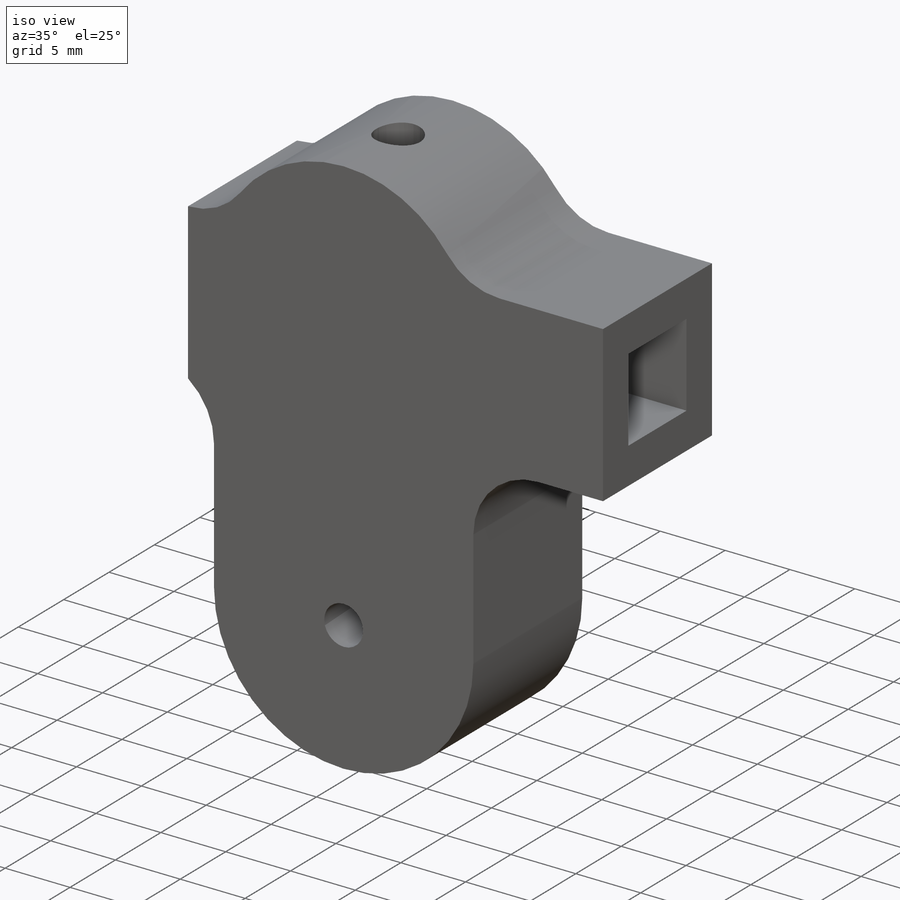
[diagram: iso view]
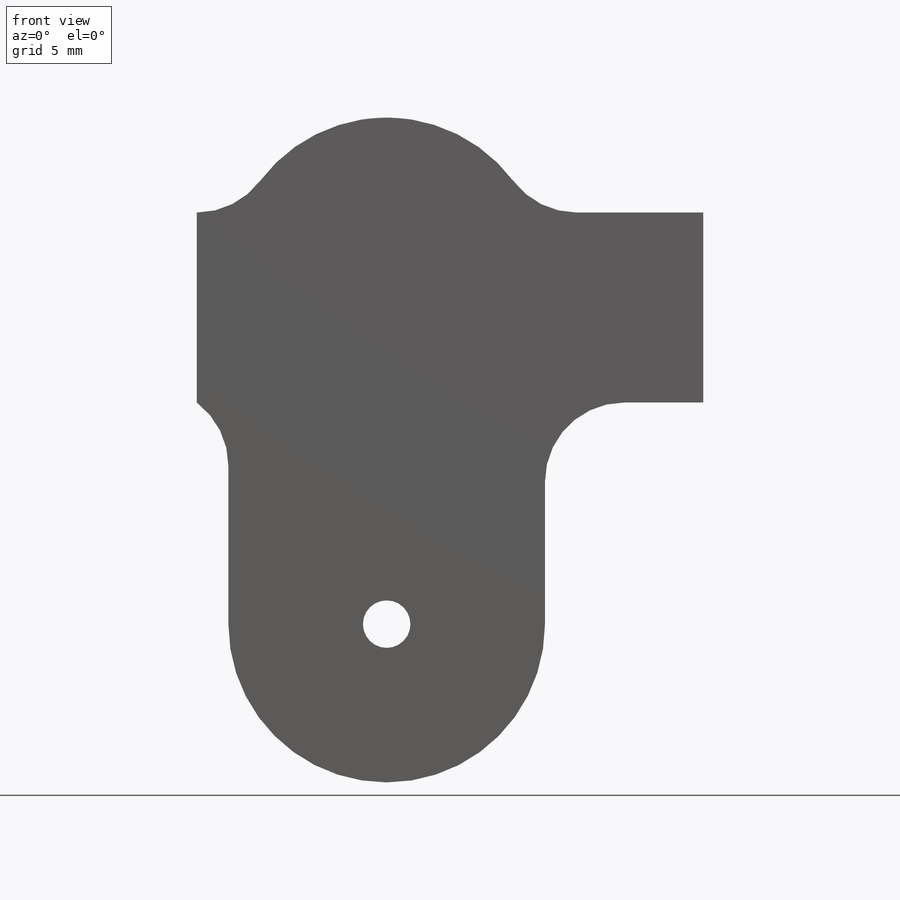
[diagram: front view]
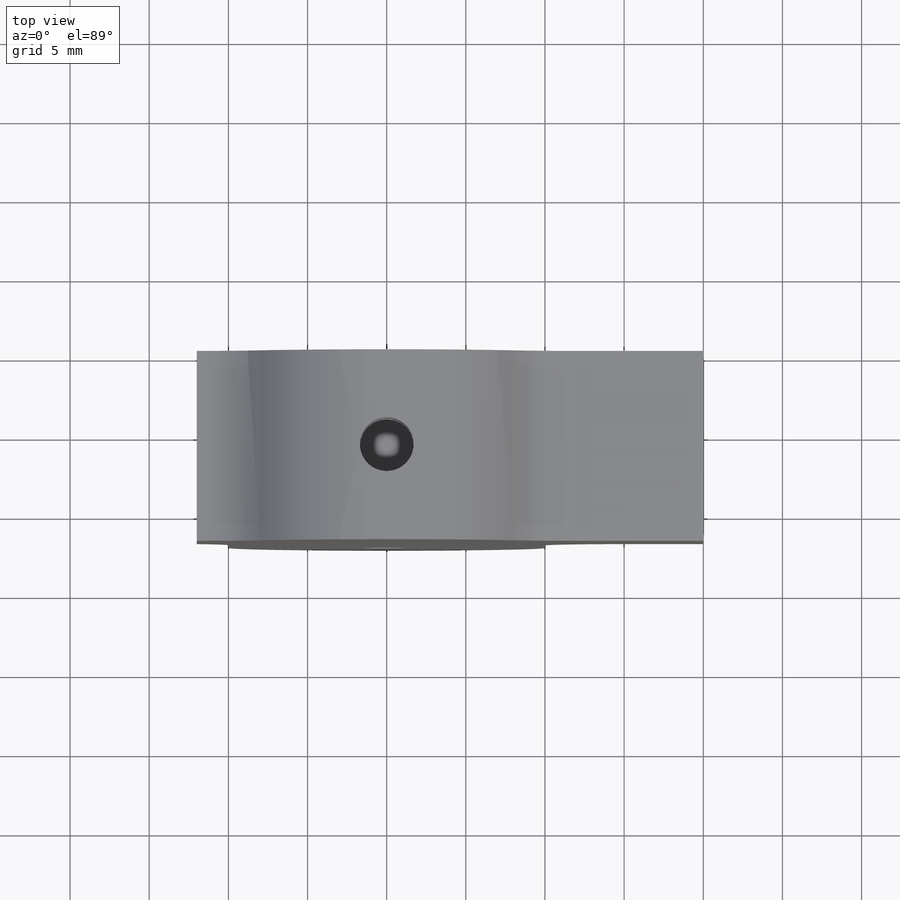
[diagram: top view]
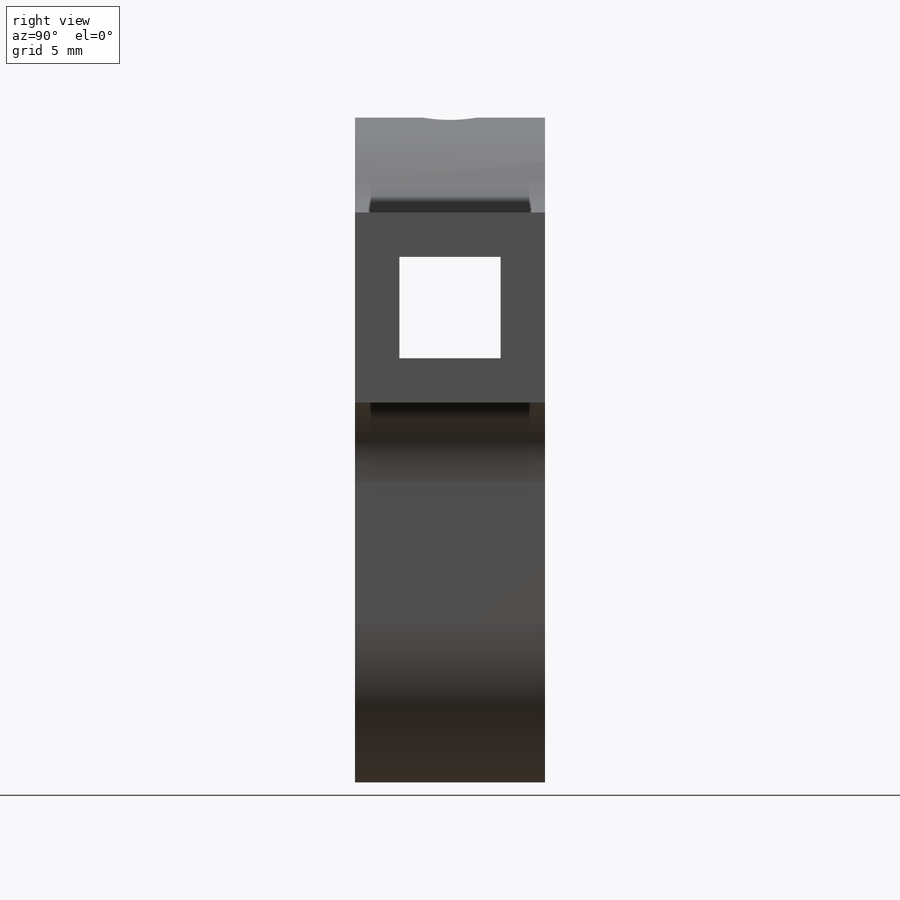
[diagram: right view]
SOLIDWORKS PART (.sldprt)
format: sldprt  version: not decoded by parser v0  size: 238,592 bytes
history: native  units: mm
features: sketch x7, cut_extrude x5, extrude x2, material x1, fillet x1 (+11 scaffold rows collapsed)
feature tree (27):
  scaffold x11  (default folders/planes/origin — collapsed)
  material  "ABS"
  sketch  "Sketch1"  dims[c1.D1=40.0mm c2.D1=20.0mm c2.D2=42.0mm]
  sketch  "Sketch2"  dims[D1=4.375mm D2=8.74mm D3=19.5mm D4=5.0mm]
  extrude  "Boss-Extrude1"  Depth=12mm
  sketch  "Sketch4"  dims[D1=3.0mm]
  cut_extrude  "Cut-Extrude2"  [1 undecoded]
  sketch  "Sketch7"  dims[D1=20.0mm]
  extrude  "Boss-Extrude2"  Depth=20mm
  cut_extrude  "Cut-Extrude1"  Depth=2mm
  sketch  "Sketch8"  dims[D1=6.4mm]
  cut_extrude  "Cut-Extrude4"  [1 undecoded]
  sketch  "Sketch9"  dims[D1=3.1mm D2=5.6mm D3=1.5mm]
  cut_extrude  "Cut-Extrude5"  Depth=9mm
  sketch  "Sketch10"  dims[D1=3.4mm]
  cut_extrude  "Cut-Extrude6"  [1 undecoded]
  fillet  "Fillet1"  Radius=5mm
decode coverage: 12 of 15 modeling features carry decoded parameters
note: 3 parameter values undecoded
summary: no parameter record found for 3 features
note: suppression state not decoded; provenance and decode notes live in map.json
